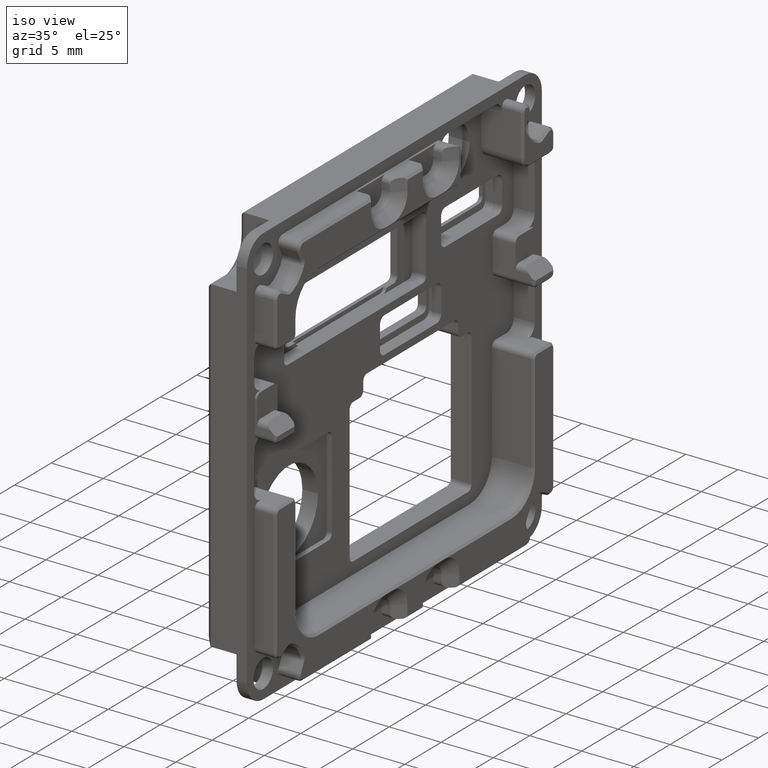
[diagram: clean part render]
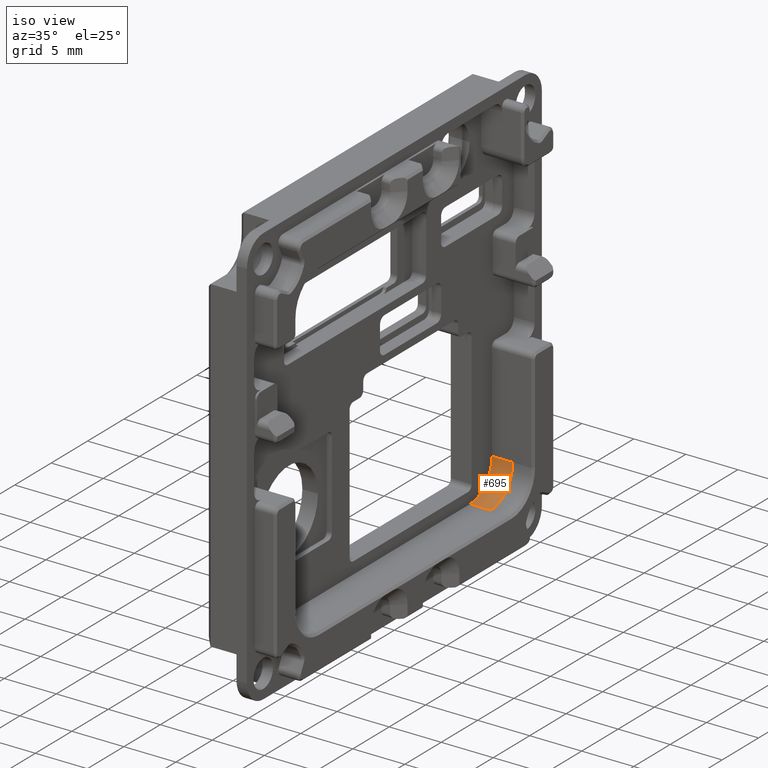
[diagram: same view with one face highlighted and labeled with its STEP entity id]
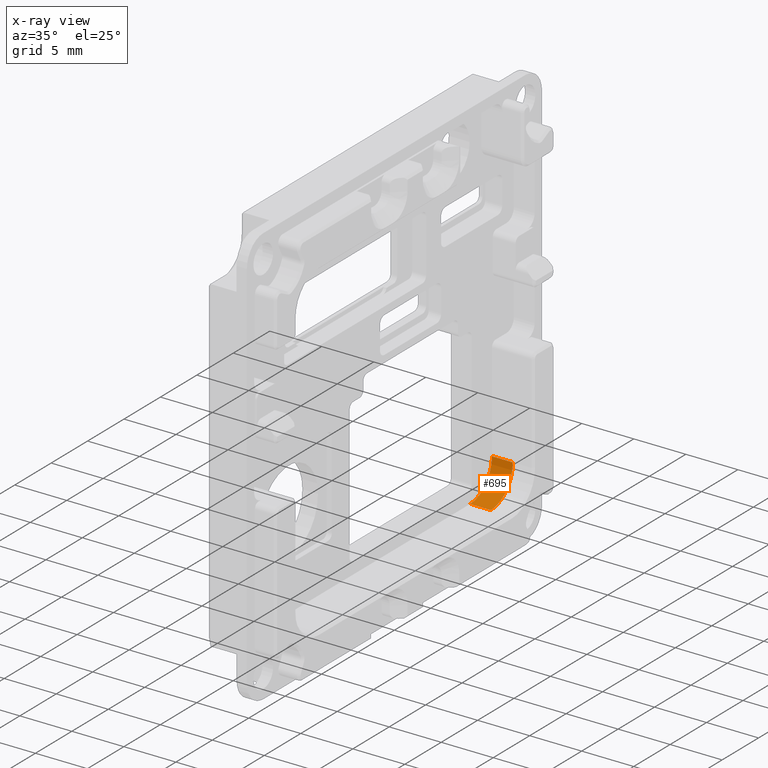
[diagram: x-ray of the same camera — body ghosted, the highlighted face saturated]
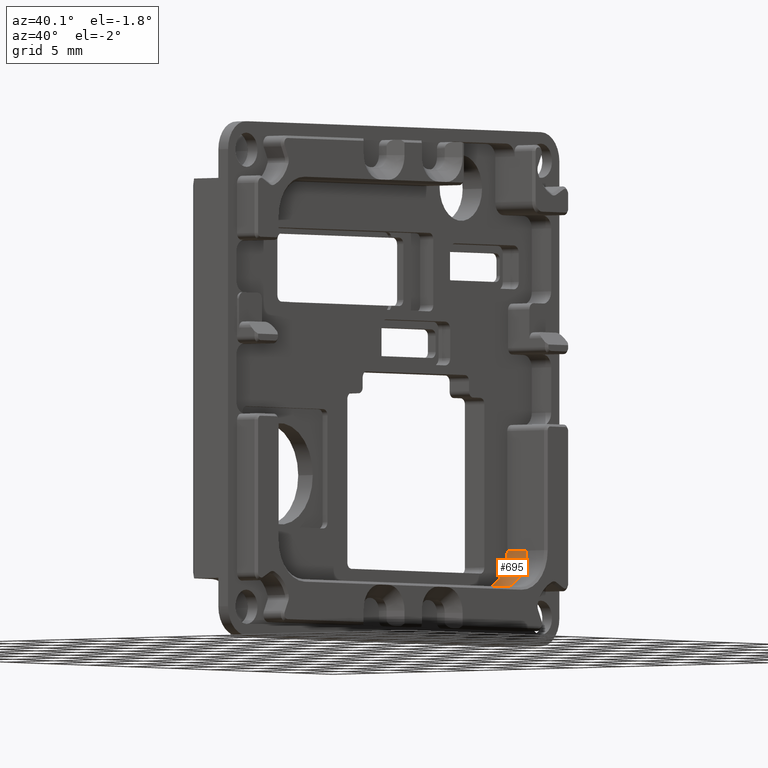
[diagram: same view with one face highlighted and labeled with its STEP entity id]
A machine part, iso view. The second image highlights one B-rep face of the part: STEP entity #695.
The next image is the same camera in x-ray: the body ghosted, the highlighted face saturated — about 0% of this face is hidden behind the body in this view.
A second angle (auxiliary view) of the same face is appended — the face is thin or edge-on in the first view.
In plain terms, the highlighted cylindrical surface (partial cylindrical patch) has radius 3 mm, axis along (-1, 0, 0).
Its self-contained STEP definition (entity closure, byte-faithful):
#468=CYLINDRICAL_SURFACE('',#10459,3.);
#695=ADVANCED_FACE('',(#1120),#468,.F.);
#1120=FACE_OUTER_BOUND('',#1590,.F.);
#1590=EDGE_LOOP('',(#2874,#2875,#2876,#2877));
#2874=ORIENTED_EDGE('',*,*,#7358,.F.);
#2875=ORIENTED_EDGE('',*,*,#7401,.F.);
#2876=ORIENTED_EDGE('',*,*,#7087,.F.);
#2877=ORIENTED_EDGE('',*,*,#7402,.T.);
#6463=CIRCLE('',#10146,3.);
#6558=CIRCLE('',#10241,3.);
#7087=EDGE_CURVE('',#9536,#9539,#6463,.T.);
#7358=EDGE_CURVE('',#9350,#9349,#6558,.T.);
#7401=EDGE_CURVE('',#9539,#9350,#8230,.T.);
#7402=EDGE_CURVE('',#9536,#9349,#8231,.T.);
#8230=LINE('',#14599,#8994);
#8231=LINE('',#14600,#8995);
#8994=VECTOR('',#11747,2.);
#8995=VECTOR('',#11748,2.);
#9349=VERTEX_POINT('',#13088);
#9350=VERTEX_POINT('',#13089);
#9536=VERTEX_POINT('',#13275);
#9539=VERTEX_POINT('',#13278);
#10146=AXIS2_PLACEMENT_3D('',#14285,#11337,#11338);
#10241=AXIS2_PLACEMENT_3D('',#14556,#11703,#11704);
#10459=AXIS2_PLACEMENT_3D('',#15091,#12456,#12457);
#11337=DIRECTION('',(1.,0.,0.));
#11338=DIRECTION('',(0.,0.,-1.));
#11703=DIRECTION('',(-1.,0.,0.));
#11704=DIRECTION('',(0.,1.,0.));
#11747=DIRECTION('',(-1.,0.,0.));
#11748=DIRECTION('',(-1.,0.,0.));
#12456=DIRECTION('',(-1.,0.,0.));
#12457=DIRECTION('',(0.,1.,0.));
#13088=CARTESIAN_POINT('',(-2.,13.2500001027223,-15.74999589123));
#13089=CARTESIAN_POINT('',(-2.,16.2500001027218,-12.7499958912292));
#13275=CARTESIAN_POINT('',(0.,13.2500001027208,-15.7499958912295));
#13278=CARTESIAN_POINT('',(0.,16.250000102722,-12.7499958912308));
#14285=CARTESIAN_POINT('',(0.,13.2500001027215,-12.74999589123));
#14556=CARTESIAN_POINT('',(-2.,13.2500001027215,-12.74999589123));
#14599=CARTESIAN_POINT('',(0.,16.2500001027219,-12.7499958912288));
#14600=CARTESIAN_POINT('',(0.,13.2500001027223,-15.74999589123));
#15091=CARTESIAN_POINT('',(2.,13.2500001027215,-12.74999589123));